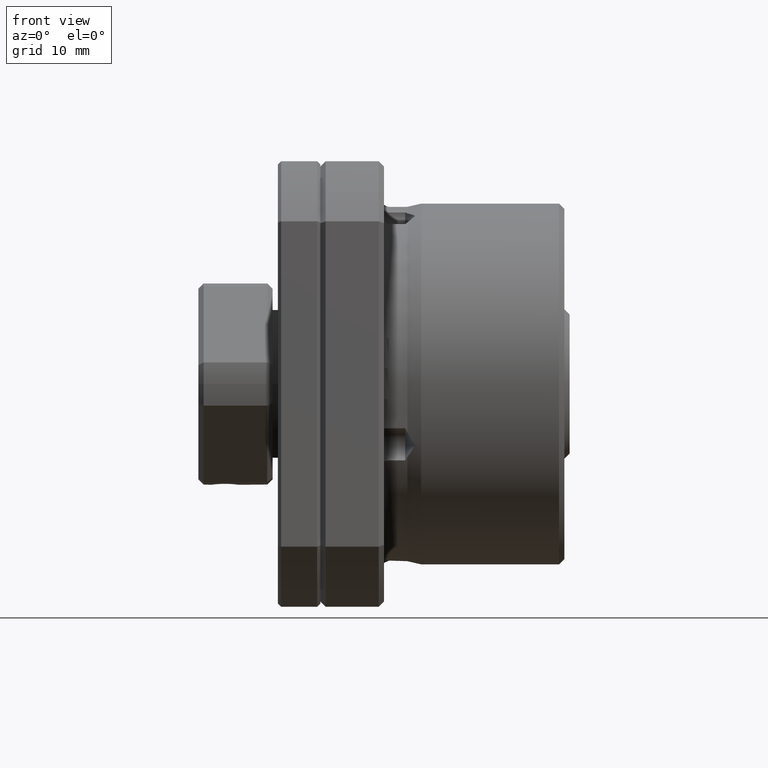
[diagram: clean part render]
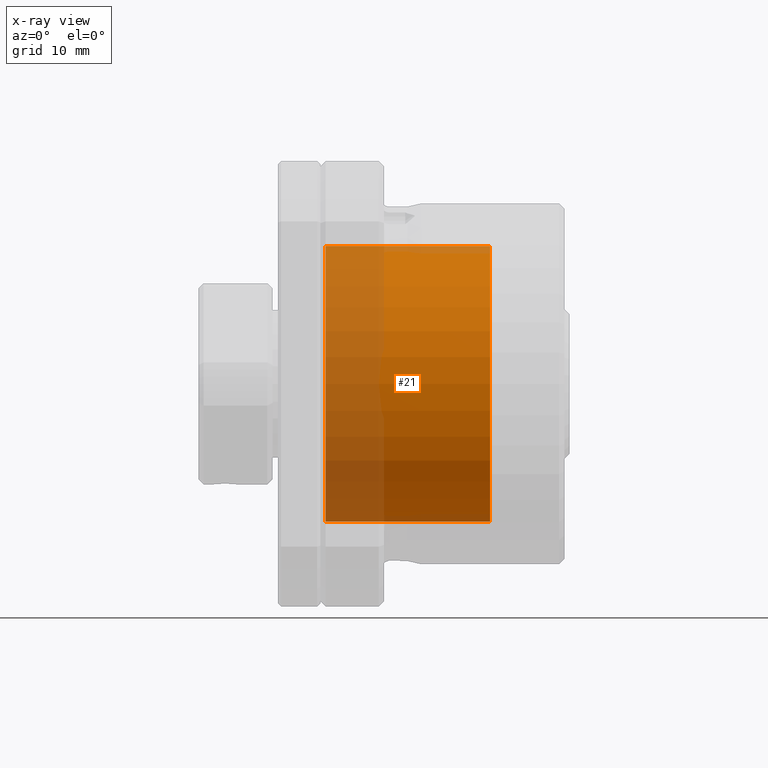
[diagram: x-ray — body ghosted, one internal face saturated and labeled with its STEP entity id]
A machine part, front view, then the same camera in x-ray: the body is ghosted and one INTERNAL B-rep face — a face not visible from any outside direction — is saturated and labeled: STEP entity #21.
In plain terms, the highlighted cylindrical surface (partial cylindrical patch) has radius 13 mm, axis along (-1, -0, -0).
Its self-contained STEP definition (entity closure, byte-faithful):
#10 = EDGE_CURVE ( 'NONE', #65, #53, #18981, .T. ) ;
#16 = EDGE_CURVE ( 'NONE', #65, #19611, #18967, .T. ) ;
#19 = ORIENTED_EDGE ( 'NONE', *, *, #10, .F. ) ;
#20 = ORIENTED_EDGE ( 'NONE', *, *, #16, .T. ) ;
#21 = ADVANCED_FACE ( 'NONE', ( #18963 ), #18962, .F. ) ;
#27 = ORIENTED_EDGE ( 'NONE', *, *, #19623, .T. ) ;
#29 = ORIENTED_EDGE ( 'NONE', *, *, #15354, .F. ) ;
#33 = EDGE_LOOP ( 'NONE', ( #19, #20, #27, #29 ) ) ;
#53 = VERTEX_POINT ( 'NONE', #19043 ) ;
#65 = VERTEX_POINT ( 'NONE', #19083 ) ;
#1334 = DIRECTION ( 'NONE',  ( -1.000000000000000000, -0.0000000000000000000, -0.0000000000000000000 ) ) ;
#1335 = VECTOR ( 'NONE', #1334, 1000.000000000000000 ) ;
#1336 = CARTESIAN_POINT ( 'NONE',  ( -94.46891865289678900, 0.0000000000000000000, 12.99999999999999800 ) ) ;
#1337 = LINE ( 'NONE', #1336, #1335 ) ;
#14783 = CARTESIAN_POINT ( 'NONE',  ( 0.5000000000000004400, 0.0000000000000000000, 12.99999999999999800 ) ) ;
#14872 = CARTESIAN_POINT ( 'NONE',  ( 0.5000000000000004400, 1.591988259969090000E-015, -12.99999999999999800 ) ) ;
#14887 = DIRECTION ( 'NONE',  ( 0.0000000000000000000, 0.0000000000000000000, -1.000000000000000000 ) ) ;
#14888 = DIRECTION ( 'NONE',  ( -1.000000000000000000, 0.0000000000000000000, 0.0000000000000000000 ) ) ;
#14889 = CARTESIAN_POINT ( 'NONE',  ( 0.5000000000000004400, 0.0000000000000000000, 0.0000000000000000000 ) ) ;
#14890 = AXIS2_PLACEMENT_3D ( 'NONE', #14889, #14888, #14887 ) ;
#14891 = CIRCLE ( 'NONE', #14890, 12.99999999999999800 ) ;
#15354 = EDGE_CURVE ( 'NONE', #53, #19589, #1337, .T. ) ;
#18962 = CYLINDRICAL_SURFACE ( 'NONE', #19027, 12.99999999999999800 ) ;
#18963 = FACE_OUTER_BOUND ( 'NONE', #33, .T. ) ;
#18964 = DIRECTION ( 'NONE',  ( -1.000000000000000000, -0.0000000000000000000, -0.0000000000000000000 ) ) ;
#18965 = VECTOR ( 'NONE', #18964, 1000.000000000000000 ) ;
#18966 = CARTESIAN_POINT ( 'NONE',  ( -94.46891865289678900, 1.591988259969090000E-015, -12.99999999999999800 ) ) ;
#18967 = LINE ( 'NONE', #18966, #18965 ) ;
#18968 = CARTESIAN_POINT ( 'NONE',  ( -94.46891865289678900, 0.0000000000000000000, 0.0000000000000000000 ) ) ;
#18977 = DIRECTION ( 'NONE',  ( 0.0000000000000000000, 0.0000000000000000000, 1.000000000000000000 ) ) ;
#18978 = DIRECTION ( 'NONE',  ( -1.000000000000000000, -0.0000000000000000000, -0.0000000000000000000 ) ) ;
#18979 = CARTESIAN_POINT ( 'NONE',  ( 16.00000000000000000, 0.0000000000000000000, 0.0000000000000000000 ) ) ;
#18980 = AXIS2_PLACEMENT_3D ( 'NONE', #18979, #18978, #18977 ) ;
#18981 = CIRCLE ( 'NONE', #18980, 12.99999999999999800 ) ;
#19025 = DIRECTION ( 'NONE',  ( 0.0000000000000000000, 0.0000000000000000000, 1.000000000000000000 ) ) ;
#19026 = DIRECTION ( 'NONE',  ( -1.000000000000000000, -0.0000000000000000000, -0.0000000000000000000 ) ) ;
#19027 = AXIS2_PLACEMENT_3D ( 'NONE', #18968, #19026, #19025 ) ;
#19043 = CARTESIAN_POINT ( 'NONE',  ( 16.00000000000000000, 0.0000000000000000000, 12.99999999999999800 ) ) ;
#19083 = CARTESIAN_POINT ( 'NONE',  ( 16.00000000000000000, 1.591988259969090000E-015, -12.99999999999999800 ) ) ;
#19589 = VERTEX_POINT ( 'NONE', #14783 ) ;
#19611 = VERTEX_POINT ( 'NONE', #14872 ) ;
#19623 = EDGE_CURVE ( 'NONE', #19611, #19589, #14891, .T. ) ;